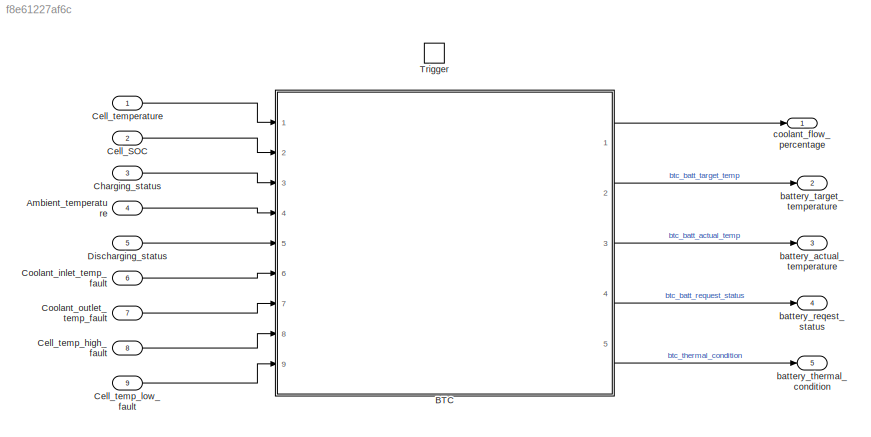
MODEL slx_f8e61227af6c
KIND model
CONFIG AbsTol = auto
CONFIG FixedStep = 0.01
CONFIG MaxStep = auto
CONFIG MinStep = auto
CONFIG RelTol = 1e-3
CONFIG SampleTimeConstraint = Unconstrained
CONFIG Solver = ode4
CONFIG SolverMode = Auto
CONFIG SolverName = ode4
CONFIG StartTime = 0.0
CONFIG StopTime = 10.0
BLOCK [Inport] Ambient_temperature
  IconDisplay = Port number
  Port = 4
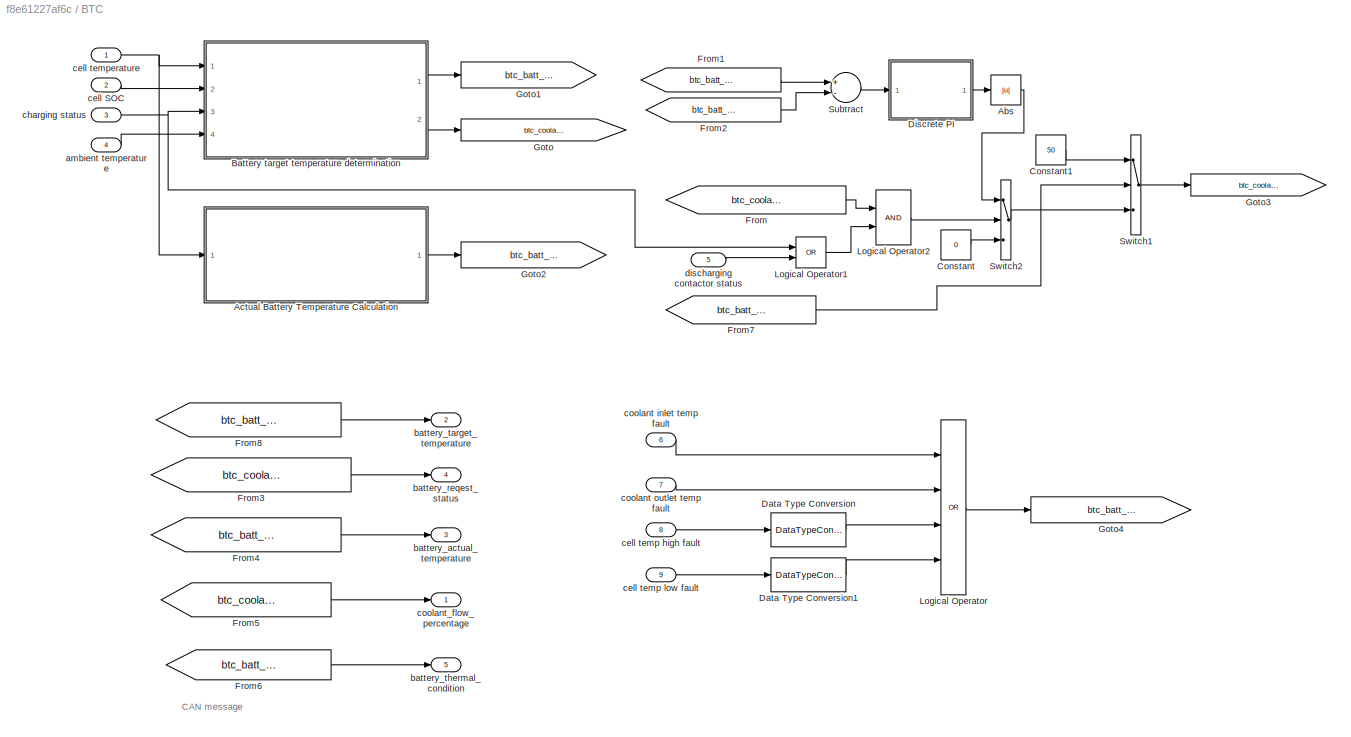
BLOCK [SubSystem] BTC
  Ports = [9, 5]
  RequestExecContextInheritance = off
  TreatAsAtomicUnit = on
  Variant = off
BLOCK [Abs] BTC/Abs
  SaturateOnIntegerOverflow = off
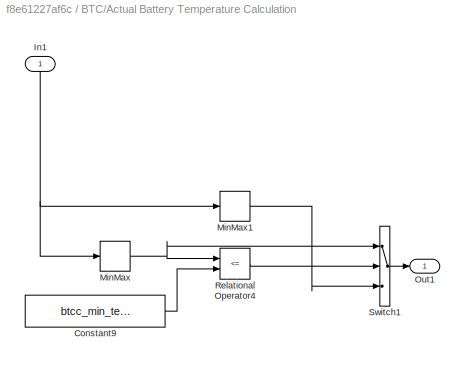
BLOCK [SubSystem] BTC/Actual Battery Temperature Calculation
  Ports = [1, 1]
  RequestExecContextInheritance = off
  Variant = off
BLOCK [Constant] BTC/Actual Battery Temperature Calculation/Constant9
  Value = btcc_min_temp_lowth
BLOCK [Inport] BTC/Actual Battery Temperature Calculation/In1
  IconDisplay = Port number
BLOCK [MinMax] BTC/Actual Battery Temperature Calculation/MinMax
  InputSameDT = off
  Ports = [1, 1]
  SaturateOnIntegerOverflow = off
BLOCK [MinMax] BTC/Actual Battery Temperature Calculation/MinMax1
  Function = max
  InputSameDT = off
  Ports = [1, 1]
  SaturateOnIntegerOverflow = off
BLOCK [Outport] BTC/Actual Battery Temperature Calculation/Out1
  IconDisplay = Port number
BLOCK [RelationalOperator] BTC/Actual Battery Temperature Calculation/Relational Operator4
  InputSameDT = off
  Operator = <=
  OutDataTypeStr = boolean
  Ports = [2, 1]
BLOCK [Switch] BTC/Actual Battery Temperature Calculation/Switch1
  InputSameDT = off
  SaturateOnIntegerOverflow = off
  Threshold = 0.5
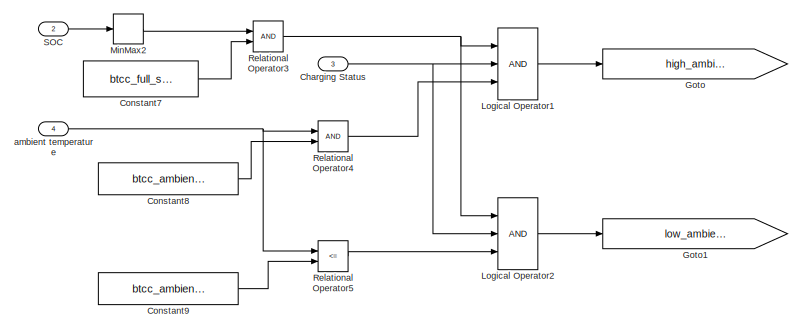
[diagram: BTC/Battery target temperature determination - part 1/2, top left region]
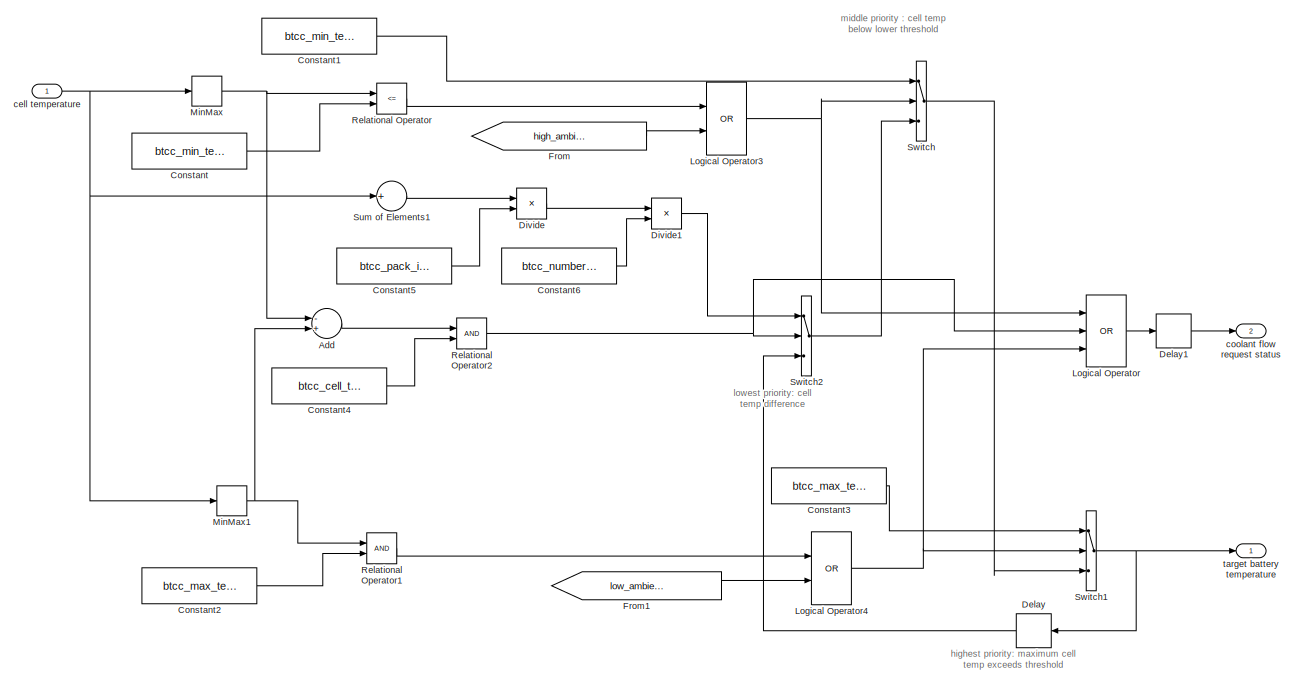
[diagram: BTC/Battery target temperature determination - part 2/2, full width, bottom band]
BLOCK [SubSystem] BTC/Battery target temperature determination
  Ports = [4, 2]
  RequestExecContextInheritance = off
  Variant = off
BLOCK [Sum] BTC/Battery target temperature determination/Add
  InputSameDT = off
  Inputs = -+
  OutDataTypeStr = Inherit: Inherit via internal rule
  Ports = [2, 1]
  SaturateOnIntegerOverflow = off
BLOCK [Inport] BTC/Battery target temperature determination/Charging Status
  IconDisplay = Port number
  Port = 3
BLOCK [Constant] BTC/Battery target temperature determination/Constant
  Value = btcc_min_temp_lowth
BLOCK [Constant] BTC/Battery target temperature determination/Constant1
  Value = btcc_min_temp_highth
BLOCK [Constant] BTC/Battery target temperature determination/Constant2
  Value = btcc_max_temp_highth
BLOCK [Constant] BTC/Battery target temperature determination/Constant3
  Value = btcc_max_temp_lowth
BLOCK [Constant] BTC/Battery target temperature determination/Constant4
  Value = btcc_cell_temp_diffth
BLOCK [Constant] BTC/Battery target temperature determination/Constant5
  Value = btcc_pack_in_parallel
BLOCK [Constant] BTC/Battery target temperature determination/Constant6
  Value = btcc_number_in_series
BLOCK [Constant] BTC/Battery target temperature determination/Constant7
  Value = btcc_full_soc
BLOCK [Constant] BTC/Battery target temperature determination/Constant8
  Value = btcc_ambient_temp_highth
BLOCK [Constant] BTC/Battery target temperature determination/Constant9
  Value = btcc_ambient_temp_lowth
BLOCK [Delay] BTC/Battery target temperature determination/Delay
  DelayLength = 1
  InitialCondition = 26
  InputPortMap = u0
  Ports = [1, 1]
BLOCK [Delay] BTC/Battery target temperature determination/Delay1
  InputPortMap = u0
  Ports = [1, 1]
BLOCK [Product] BTC/Battery target temperature determination/Divide
  InputSameDT = off
  Inputs = */
  OutDataTypeStr = Inherit: Inherit via internal rule
  Ports = [2, 1]
  RndMeth = Floor
  SaturateOnIntegerOverflow = off
BLOCK [Product] BTC/Battery target temperature determination/Divide1
  InputSameDT = off
  Inputs = */
  OutDataTypeStr = Inherit: Inherit via internal rule
  Ports = [2, 1]
  RndMeth = Floor
  SaturateOnIntegerOverflow = off
BLOCK [From] BTC/Battery target temperature determination/From
  GotoTag = high_ambient_trigger
BLOCK [From] BTC/Battery target temperature determination/From1
  GotoTag = low_ambient_trigger
BLOCK [Goto] BTC/Battery target temperature determination/Goto
  GotoTag = high_ambient_trigger
BLOCK [Goto] BTC/Battery target temperature determination/Goto1
  GotoTag = low_ambient_trigger
BLOCK [Logic] BTC/Battery target temperature determination/Logical Operator
  AllPortsSameDT = off
  Inputs = 3
  Operator = OR
  OutDataTypeStr = boolean
  Ports = [3, 1]
BLOCK [Logic] BTC/Battery target temperature determination/Logical Operator1
  AllPortsSameDT = off
  Inputs = 3
  OutDataTypeStr = boolean
  Ports = [3, 1]
BLOCK [Logic] BTC/Battery target temperature determination/Logical Operator2
  AllPortsSameDT = off
  Inputs = 3
  OutDataTypeStr = boolean
  Ports = [3, 1]
BLOCK [Logic] BTC/Battery target temperature determination/Logical Operator3
  AllPortsSameDT = off
  Operator = OR
  OutDataTypeStr = boolean
  Ports = [2, 1]
BLOCK [Logic] BTC/Battery target temperature determination/Logical Operator4
  AllPortsSameDT = off
  Operator = OR
  OutDataTypeStr = boolean
  Ports = [2, 1]
BLOCK [MinMax] BTC/Battery target temperature determination/MinMax
  InputSameDT = off
  Ports = [1, 1]
  SaturateOnIntegerOverflow = off
BLOCK [MinMax] BTC/Battery target temperature determination/MinMax1
  Function = max
  InputSameDT = off
  Ports = [1, 1]
  SaturateOnIntegerOverflow = off
BLOCK [MinMax] BTC/Battery target temperature determination/MinMax2
  InputSameDT = off
  Ports = [1, 1]
  SaturateOnIntegerOverflow = off
BLOCK [RelationalOperator] BTC/Battery target temperature determination/Relational Operator
  InputSameDT = off
  Operator = <=
  OutDataTypeStr = boolean
  Ports = [2, 1]
BLOCK [RelationalOperator] BTC/Battery target temperature determination/Relational Operator1
  InputSameDT = off
  OutDataTypeStr = boolean
  Ports = [2, 1]
BLOCK [RelationalOperator] BTC/Battery target temperature determination/Relational Operator2
  InputSameDT = off
  OutDataTypeStr = boolean
  Ports = [2, 1]
BLOCK [RelationalOperator] BTC/Battery target temperature determination/Relational Operator3
  InputSameDT = off
  OutDataTypeStr = boolean
  Ports = [2, 1]
BLOCK [RelationalOperator] BTC/Battery target temperature determination/Relational Operator4
  InputSameDT = off
  OutDataTypeStr = boolean
  Ports = [2, 1]
BLOCK [RelationalOperator] BTC/Battery target temperature determination/Relational Operator5
  InputSameDT = off
  Operator = <=
  OutDataTypeStr = boolean
  Ports = [2, 1]
BLOCK [Inport] BTC/Battery target temperature determination/SOC
  IconDisplay = Port number
  Port = 2
BLOCK [Sum] BTC/Battery target temperature determination/Sum of Elements1
  InputSameDT = off
  Inputs = +
  OutDataTypeStr = Inherit: Inherit via internal rule
  Ports = [1, 1]
  SaturateOnIntegerOverflow = off
BLOCK [Switch] BTC/Battery target temperature determination/Switch
  InputSameDT = off
  SaturateOnIntegerOverflow = off
  Threshold = 0.5
BLOCK [Switch] BTC/Battery target temperature determination/Switch1
  InputSameDT = off
  SaturateOnIntegerOverflow = off
  Threshold = 0.5
BLOCK [Switch] BTC/Battery target temperature determination/Switch2
  InputSameDT = off
  SaturateOnIntegerOverflow = off
  Threshold = 0.5
BLOCK [Inport] BTC/Battery target temperature determination/ambient temperature
  IconDisplay = Port number
  Port = 4
BLOCK [Inport] BTC/Battery target temperature determination/cell temperature
  IconDisplay = Port number
BLOCK [Outport] BTC/Battery target temperature determination/coolant flow request status
  IconDisplay = Port number
  Port = 2
BLOCK [Outport] BTC/Battery target temperature determination/target battery temperature
  IconDisplay = Port number
BLOCK [Constant] BTC/Constant
  Value = 0
BLOCK [Constant] BTC/Constant1
  Value = 50
BLOCK [DataTypeConversion] BTC/Data Type Conversion
  OutDataTypeStr = boolean
  RndMeth = Floor
  SaturateOnIntegerOverflow = off
BLOCK [DataTypeConversion] BTC/Data Type Conversion1
  OutDataTypeStr = boolean
  RndMeth = Floor
  SaturateOnIntegerOverflow = off
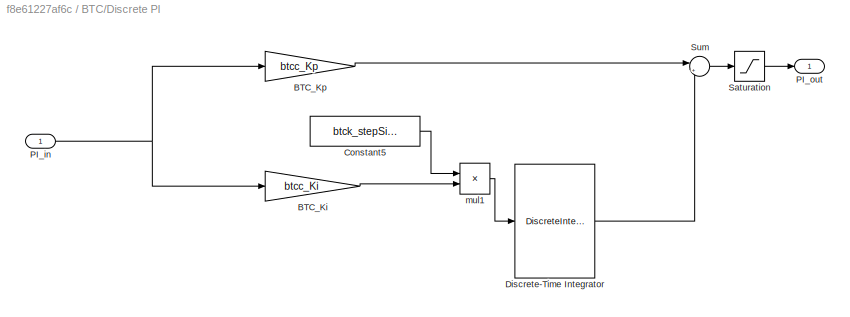
BLOCK [SubSystem] BTC/Discrete PI
  Ports = [1, 1]
  RequestExecContextInheritance = off
  Variant = off
BLOCK [Gain] BTC/Discrete PI/BTC_Ki
  Gain = btcc_Ki
  OutDataTypeStr = Inherit: Inherit via internal rule
  ParamDataTypeStr = Inherit: Inherit via internal rule
  SaturateOnIntegerOverflow = off
BLOCK [Gain] BTC/Discrete PI/BTC_Kp
  Gain = btcc_Kp
  OutDataTypeStr = Inherit: Inherit via internal rule
  ParamDataTypeStr = Inherit: Inherit via internal rule
  SaturateOnIntegerOverflow = off
BLOCK [Constant] BTC/Discrete PI/Constant5
  SampleTime = -1
  Value = btck_stepSize
BLOCK [DiscreteIntegrator] BTC/Discrete PI/Discrete-Time Integrator
  ICPrevOutput = DiscIntNeverNeededParam
  ICPrevScaledInput = DiscIntNeverNeededParam
  InitialConditionSetting = State (most efficient)
  IntegratorMethod = Accumulation: Forward Euler
  LowerSaturationLimit = -100
  Ports = [1, 1]
  SampleTime = -1
  UpperSaturationLimit = 100
BLOCK [Inport] BTC/Discrete PI/PI_in
  IconDisplay = Port number
BLOCK [Outport] BTC/Discrete PI/PI_out
  IconDisplay = Port number
BLOCK [Saturate] BTC/Discrete PI/Saturation
  InputPortMap = u0
  LowerLimit = -100
  Ports = [1, 1]
  UpperLimit = 100
BLOCK [Sum] BTC/Discrete PI/Sum
  IconShape = round
  InputSameDT = off
  Inputs = |++
  OutDataTypeStr = Inherit: Inherit via internal rule
  Ports = [2, 1]
  SaturateOnIntegerOverflow = off
BLOCK [Product] BTC/Discrete PI/mul1
  InputSameDT = off
  Inputs = **
  OutDataTypeStr = Inherit: Inherit via internal rule
  Ports = [2, 1]
  RndMeth = Floor
  SaturateOnIntegerOverflow = off
BLOCK [From] BTC/From
  GotoTag = btc_coolant_request_status
BLOCK [From] BTC/From1
  GotoTag = btc_batt_temp_target
BLOCK [From] BTC/From2
  GotoTag = btc_batt_actual_temp
BLOCK [From] BTC/From3
  GotoTag = btc_coolant_request_status
BLOCK [From] BTC/From4
  GotoTag = btc_batt_actual_temp
BLOCK [From] BTC/From5
  GotoTag = btc_coolant_flow_percent
BLOCK [From] BTC/From6
  GotoTag = btc_batt_thermal_condition
BLOCK [From] BTC/From7
  GotoTag = btc_batt_thermal_condition
BLOCK [From] BTC/From8
  GotoTag = btc_batt_temp_target
BLOCK [Goto] BTC/Goto
  GotoTag = btc_coolant_request_status
BLOCK [Goto] BTC/Goto1
  GotoTag = btc_batt_temp_target
BLOCK [Goto] BTC/Goto2
  GotoTag = btc_batt_actual_temp
BLOCK [Goto] BTC/Goto3
  GotoTag = btc_coolant_flow_percent
BLOCK [Goto] BTC/Goto4
  GotoTag = btc_batt_thermal_condition
BLOCK [Logic] BTC/Logical Operator
  AllPortsSameDT = off
  Inputs = 4
  Operator = OR
  OutDataTypeStr = boolean
  Ports = [4, 1]
BLOCK [Logic] BTC/Logical Operator1
  AllPortsSameDT = off
  Operator = OR
  OutDataTypeStr = boolean
  Ports = [2, 1]
BLOCK [Logic] BTC/Logical Operator2
  AllPortsSameDT = off
  OutDataTypeStr = boolean
  Ports = [2, 1]
BLOCK [Sum] BTC/Subtract
  InputSameDT = off
  Inputs = +-
  OutDataTypeStr = Inherit: Inherit via internal rule
  Ports = [2, 1]
  SaturateOnIntegerOverflow = off
BLOCK [Switch] BTC/Switch1
  Criteria = u2 > Threshold
  InputSameDT = off
  SaturateOnIntegerOverflow = off
  Threshold = 0.5
BLOCK [Switch] BTC/Switch2
  Criteria = u2 > Threshold
  InputSameDT = off
  SaturateOnIntegerOverflow = off
  Threshold = 0.5
BLOCK [Inport] BTC/ambient temperature
  IconDisplay = Port number
  Port = 4
BLOCK [Outport] BTC/battery_actual_temperature
  IconDisplay = Port number
  Port = 3
BLOCK [Outport] BTC/battery_reqest_status
  IconDisplay = Port number
  Port = 4
BLOCK [Outport] BTC/battery_target_temperature
  IconDisplay = Port number
  Port = 2
BLOCK [Outport] BTC/battery_thermal_condition
  IconDisplay = Port number
  Port = 5
BLOCK [Inport] BTC/cell SOC
  IconDisplay = Port number
  Port = 2
BLOCK [Inport] BTC/cell temp high fault
  IconDisplay = Port number
  OutDataTypeStr = uint8
  Port = 8
BLOCK [Inport] BTC/cell temp low fault
  IconDisplay = Port number
  OutDataTypeStr = uint8
  Port = 9
BLOCK [Inport] BTC/cell temperature
  IconDisplay = Port number
BLOCK [Inport] BTC/charging status
  IconDisplay = Port number
  Port = 3
BLOCK [Inport] BTC/coolant inlet temp fault
  IconDisplay = Port number
  Port = 6
BLOCK [Inport] BTC/coolant outlet temp fault
  IconDisplay = Port number
  Port = 7
BLOCK [Outport] BTC/coolant_flow_percentage
  IconDisplay = Port number
BLOCK [Inport] BTC/discharging contactor status
  IconDisplay = Port number
  Port = 5
BLOCK [Inport] Cell_SOC
  IconDisplay = Port number
  Port = 2
  PortDimensions = 40
BLOCK [Inport] Cell_temp_high_fault
  IconDisplay = Port number
  Port = 8
BLOCK [Inport] Cell_temp_low_fault
  IconDisplay = Port number
  Port = 9
BLOCK [Inport] Cell_temperature
  IconDisplay = Port number
  PortDimensions = 40
BLOCK [Inport] Charging_status
  IconDisplay = Port number
  Port = 3
BLOCK [Inport] Coolant_inlet_temp_fault
  IconDisplay = Port number
  Port = 6
BLOCK [Inport] Coolant_outlet_temp_fault
  IconDisplay = Port number
  Port = 7
BLOCK [Inport] Discharging_status
  IconDisplay = Port number
  Port = 5
BLOCK [TriggerPort] Trigger
  PortDimensions = 1
  Ports = []
  StatesWhenEnabling = held
  TriggerType = function-call
BLOCK [Outport] battery_actual_temperature
  IconDisplay = Port number
  Port = 3
BLOCK [Outport] battery_reqest_status
  IconDisplay = Port number
  Port = 4
BLOCK [Outport] battery_target_temperature
  IconDisplay = Port number
  Port = 2
BLOCK [Outport] battery_thermal_condition
  IconDisplay = Port number
  Port = 5
BLOCK [Outport] coolant_flow_percentage
  IconDisplay = Port number
ANNOTATION BTC: CAN message
ANNOTATION BTC/Battery target temperature determination: highest priority: maximum cell temp exceeds threshold
ANNOTATION BTC/Battery target temperature determination: lowest priority: cell temp difference
ANNOTATION BTC/Battery target temperature determination: middle priority : cell temp below lower threshold
LINE Ambient_temperature:1 -> BTC:4
LINE BTC/Abs:1 -> BTC/Switch2:1
LINE BTC/Actual Battery Temperature Calculation/Constant9:1 -> BTC/Actual Battery Temperature Calculation/Relational Operator4:2
NET BTC/Actual Battery Temperature Calculation/In1:1 -> BTC/Actual Battery Temperature Calculation/MinMax1:1, BTC/Actual Battery Temperature Calculation/MinMax:1
LINE BTC/Actual Battery Temperature Calculation/MinMax1:1 -> BTC/Actual Battery Temperature Calculation/Switch1:3
NET BTC/Actual Battery Temperature Calculation/MinMax:1 -> BTC/Actual Battery Temperature Calculation/Relational Operator4:1, BTC/Actual Battery Temperature Calculation/Switch1:1
LINE BTC/Actual Battery Temperature Calculation/Relational Operator4:1 -> BTC/Actual Battery Temperature Calculation/Switch1:2
LINE BTC/Actual Battery Temperature Calculation/Switch1:1 -> BTC/Actual Battery Temperature Calculation/Out1:1
LINE BTC/Actual Battery Temperature Calculation:1 -> BTC/Goto2:1
LINE BTC/Battery target temperature determination/Add:1 -> BTC/Battery target temperature determination/Relational Operator2:1
NET BTC/Battery target temperature determination/Charging Status:1 -> BTC/Battery target temperature determination/Logical Operator1:2, BTC/Battery target temperature determination/Logical Operator2:2
LINE BTC/Battery target temperature determination/Constant1:1 -> BTC/Battery target temperature determination/Switch:1
LINE BTC/Battery target temperature determination/Constant2:1 -> BTC/Battery target temperature determination/Relational Operator1:2
LINE BTC/Battery target temperature determination/Constant3:1 -> BTC/Battery target temperature determination/Switch1:1
LINE BTC/Battery target temperature determination/Constant4:1 -> BTC/Battery target temperature determination/Relational Operator2:2
LINE BTC/Battery target temperature determination/Constant5:1 -> BTC/Battery target temperature determination/Divide:2
LINE BTC/Battery target temperature determination/Constant6:1 -> BTC/Battery target temperature determination/Divide1:2
LINE BTC/Battery target temperature determination/Constant7:1 -> BTC/Battery target temperature determination/Relational Operator3:2
LINE BTC/Battery target temperature determination/Constant8:1 -> BTC/Battery target temperature determination/Relational Operator4:2
LINE BTC/Battery target temperature determination/Constant9:1 -> BTC/Battery target temperature determination/Relational Operator5:2
LINE BTC/Battery target temperature determination/Constant:1 -> BTC/Battery target temperature determination/Relational Operator:2
LINE BTC/Battery target temperature determination/Delay1:1 -> BTC/Battery target temperature determination/coolant flow request status:1
LINE BTC/Battery target temperature determination/Delay:1 -> BTC/Battery target temperature determination/Switch2:3
LINE BTC/Battery target temperature determination/Divide1:1 -> BTC/Battery target temperature determination/Switch2:1
LINE BTC/Battery target temperature determination/Divide:1 -> BTC/Battery target temperature determination/Divide1:1
LINE BTC/Battery target temperature determination/From1:1 -> BTC/Battery target temperature determination/Logical Operator4:2
LINE BTC/Battery target temperature determination/From:1 -> BTC/Battery target temperature determination/Logical Operator3:2
LINE BTC/Battery target temperature determination/Logical Operator1:1 -> BTC/Battery target temperature determination/Goto:1
LINE BTC/Battery target temperature determination/Logical Operator2:1 -> BTC/Battery target temperature determination/Goto1:1
NET BTC/Battery target temperature determination/Logical Operator3:1 -> BTC/Battery target temperature determination/Logical Operator:1, BTC/Battery target temperature determination/Switch:2
NET BTC/Battery target temperature determination/Logical Operator4:1 -> BTC/Battery target temperature determination/Logical Operator:3, BTC/Battery target temperature determination/Switch1:2
LINE BTC/Battery target temperature determination/Logical Operator:1 -> BTC/Battery target temperature determination/Delay1:1
NET BTC/Battery target temperature determination/MinMax1:1 -> BTC/Battery target temperature determination/Add:2, BTC/Battery target temperature determination/Relational Operator1:1
LINE BTC/Battery target temperature determination/MinMax2:1 -> BTC/Battery target temperature determination/Relational Operator3:1
NET BTC/Battery target temperature determination/MinMax:1 -> BTC/Battery target temperature determination/Add:1, BTC/Battery target temperature determination/Relational Operator:1
LINE BTC/Battery target temperature determination/Relational Operator1:1 -> BTC/Battery target temperature determination/Logical Operator4:1
NET BTC/Battery target temperature determination/Relational Operator2:1 -> BTC/Battery target temperature determination/Logical Operator:2, BTC/Battery target temperature determination/Switch2:2
NET BTC/Battery target temperature determination/Relational Operator3:1 -> BTC/Battery target temperature determination/Logical Operator1:1, BTC/Battery target temperature determination/Logical Operator2:1
LINE BTC/Battery target temperature determination/Relational Operator4:1 -> BTC/Battery target temperature determination/Logical Operator1:3
LINE BTC/Battery target temperature determination/Relational Operator5:1 -> BTC/Battery target temperature determination/Logical Operator2:3
LINE BTC/Battery target temperature determination/Relational Operator:1 -> BTC/Battery target temperature determination/Logical Operator3:1
LINE BTC/Battery target temperature determination/SOC:1 -> BTC/Battery target temperature determination/MinMax2:1
LINE BTC/Battery target temperature determination/Sum of Elements1:1 -> BTC/Battery target temperature determination/Divide:1
NET BTC/Battery target temperature determination/Switch1:1 -> BTC/Battery target temperature determination/Delay:1, BTC/Battery target temperature determination/target battery temperature:1
LINE BTC/Battery target temperature determination/Switch2:1 -> BTC/Battery target temperature determination/Switch:3
LINE BTC/Battery target temperature determination/Switch:1 -> BTC/Battery target temperature determination/Switch1:3
NET BTC/Battery target temperature determination/ambient temperature:1 -> BTC/Battery target temperature determination/Relational Operator4:1, BTC/Battery target temperature determination/Relational Operator5:1
NET BTC/Battery target temperature determination/cell temperature:1 -> BTC/Battery target temperature determination/MinMax1:1, BTC/Battery target temperature determination/MinMax:1, BTC/Battery target temperature determination/Sum of Elements1:1
LINE BTC/Battery target temperature determination:1 -> BTC/Goto1:1
LINE BTC/Battery target temperature determination:2 -> BTC/Goto:1
LINE BTC/Constant1:1 -> BTC/Switch1:1
LINE BTC/Constant:1 -> BTC/Switch2:3
LINE BTC/Data Type Conversion1:1 -> BTC/Logical Operator:4
LINE BTC/Data Type Conversion:1 -> BTC/Logical Operator:3
LINE BTC/Discrete PI/BTC_Ki:1 -> BTC/Discrete PI/mul1:2
LINE BTC/Discrete PI/BTC_Kp:1 -> BTC/Discrete PI/Sum:1
LINE BTC/Discrete PI/Constant5:1 -> BTC/Discrete PI/mul1:1
LINE BTC/Discrete PI/Discrete-Time Integrator:1 -> BTC/Discrete PI/Sum:2
NET BTC/Discrete PI/PI_in:1 -> BTC/Discrete PI/BTC_Ki:1, BTC/Discrete PI/BTC_Kp:1
LINE BTC/Discrete PI/Saturation:1 -> BTC/Discrete PI/PI_out:1
LINE BTC/Discrete PI/Sum:1 -> BTC/Discrete PI/Saturation:1
LINE BTC/Discrete PI/mul1:1 -> BTC/Discrete PI/Discrete-Time Integrator:1
LINE BTC/Discrete PI:1 -> BTC/Abs:1
LINE BTC/From1:1 -> BTC/Subtract:1
LINE BTC/From2:1 -> BTC/Subtract:2
LINE BTC/From3:1 -> BTC/battery_reqest_status:1
LINE BTC/From4:1 -> BTC/battery_actual_temperature:1
LINE BTC/From5:1 -> BTC/coolant_flow_percentage:1
LINE BTC/From6:1 -> BTC/battery_thermal_condition:1
LINE BTC/From7:1 -> BTC/Switch1:2
LINE BTC/From8:1 -> BTC/battery_target_temperature:1
LINE BTC/From:1 -> BTC/Logical Operator2:1
LINE BTC/Logical Operator1:1 -> BTC/Logical Operator2:2
LINE BTC/Logical Operator2:1 -> BTC/Switch2:2
LINE BTC/Logical Operator:1 -> BTC/Goto4:1
LINE BTC/Subtract:1 -> BTC/Discrete PI:1
LINE BTC/Switch1:1 -> BTC/Goto3:1
LINE BTC/Switch2:1 -> BTC/Switch1:3
LINE BTC/ambient temperature:1 -> BTC/Battery target temperature determination:4
LINE BTC/cell SOC:1 -> BTC/Battery target temperature determination:2
LINE BTC/cell temp high fault:1 -> BTC/Data Type Conversion:1
LINE BTC/cell temp low fault:1 -> BTC/Data Type Conversion1:1
NET BTC/cell temperature:1 -> BTC/Actual Battery Temperature Calculation:1, BTC/Battery target temperature determination:1
NET BTC/charging status:1 -> BTC/Battery target temperature determination:3, BTC/Logical Operator1:1
LINE BTC/coolant inlet temp fault:1 -> BTC/Logical Operator:1
LINE BTC/coolant outlet temp fault:1 -> BTC/Logical Operator:2
LINE BTC/discharging contactor status:1 -> BTC/Logical Operator1:2
LINE BTC:1 -> coolant_flow_percentage:1
LINE BTC:2 -> battery_target_temperature:1
LINE BTC:3 -> battery_actual_temperature:1
LINE BTC:4 -> battery_reqest_status:1
LINE BTC:5 -> battery_thermal_condition:1
LINE Cell_SOC:1 -> BTC:2
LINE Cell_temp_high_fault:1 -> BTC:8
LINE Cell_temp_low_fault:1 -> BTC:9
LINE Cell_temperature:1 -> BTC:1
LINE Charging_status:1 -> BTC:3
LINE Coolant_inlet_temp_fault:1 -> BTC:6
LINE Coolant_outlet_temp_fault:1 -> BTC:7
LINE Discharging_status:1 -> BTC:5
note: NET lines group one-source signal fan-out (src -> all destinations, sorted); 1:1 wires keep LINE
